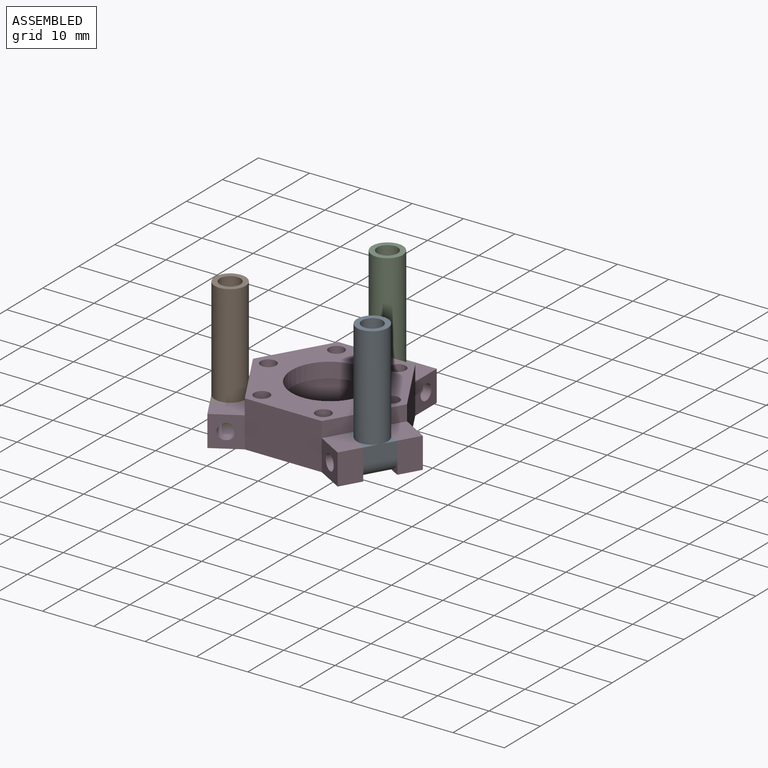
[diagram: assembled view]
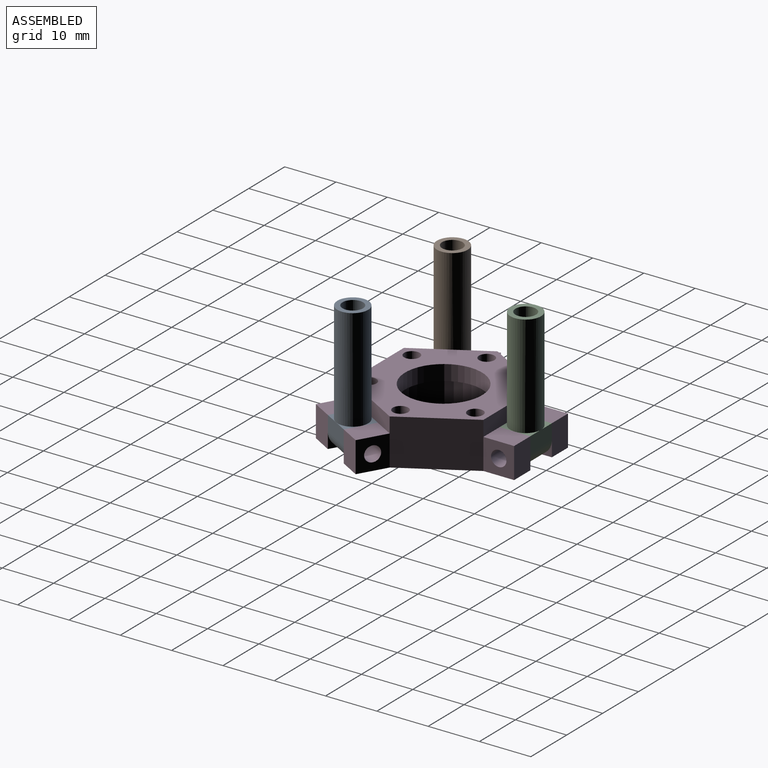
[diagram: assembled view, second angle]
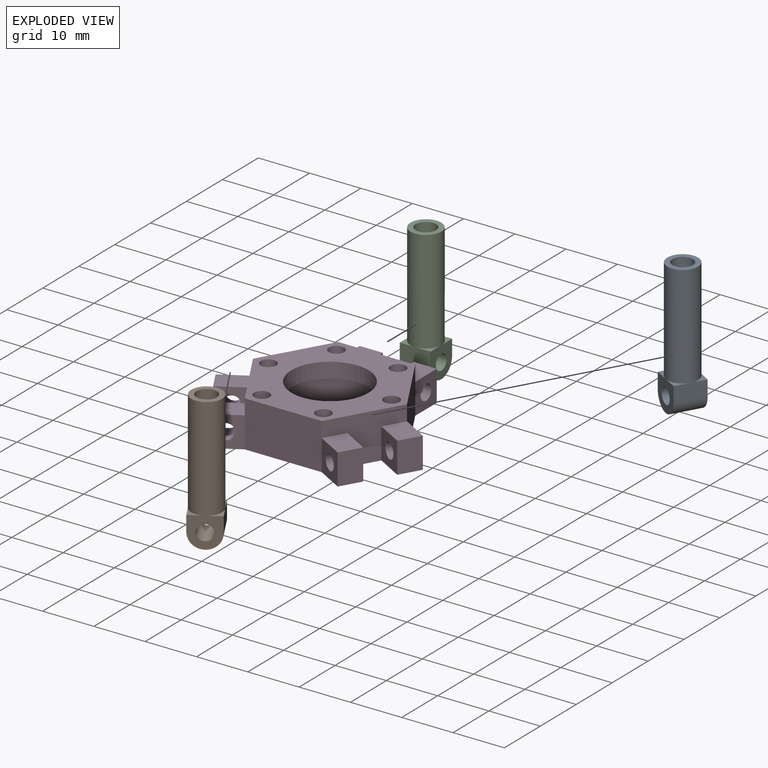
[diagram: exploded view]
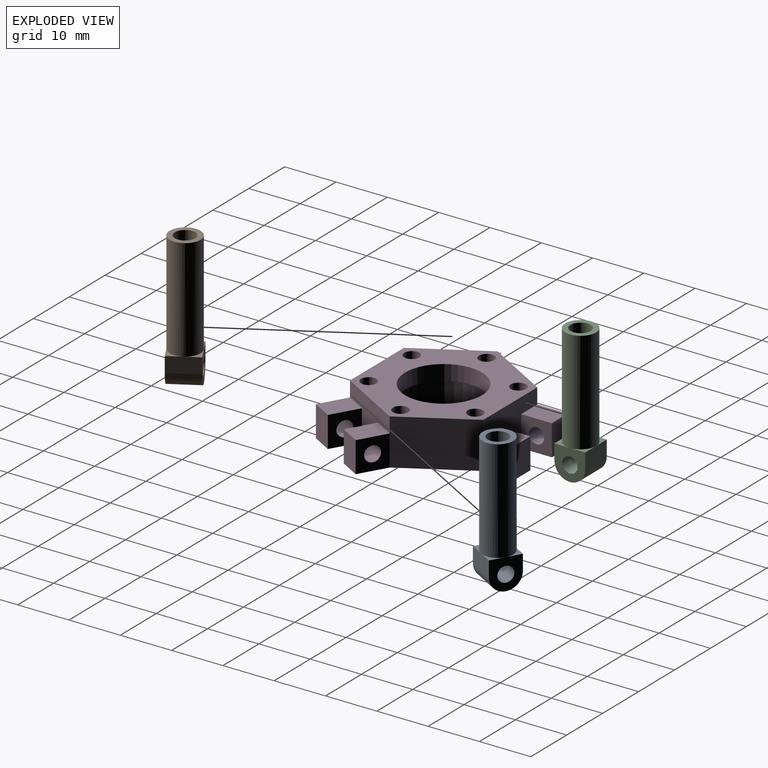
[diagram: exploded view, second angle]
ASSEMBLY  parts=4 mates=3
PART A: 14 faces, bbox 6x6x26 mm
  f0: plane 3x3mm, normal (0,0,1), area 1.9mm2, adj f5,f8,f11
  f1: plane 3x3mm, normal (0,0,1), area 1.9mm2, adj f5,f9,f11
  f2: plane 3x3mm, normal (0,0,1), area 1.9mm2, adj f3,f9,f11
  f3: plane 6x3mm, normal (0,-1,0), area 18mm2, adj f2,f4,f6,f8,f9
  f4: cylinder r=3mm len=6mm, axis (-1,0,0), area 56.5mm2, adj f3,f5,f8,f9
  f5: plane 6x3mm, normal (0,1,0), area 18mm2, adj f0,f1,f4,f8,f9
  f6: plane 3x3mm, normal (0,0,1), area 1.9mm2, adj f3,f8,f11
  f7: cylinder r=1.5mm len=6mm, axis (-1,0,0), area 56.5mm2, adj f8,f9
  f8: plane 6x6mm, normal (1,0,0), area 25.1mm2, adj f0,f3,f4,f5,f6,f7
  f9: plane 6x6mm, normal (-1,0,0), area 25.1mm2, adj f1,f2,f3,f4,f5,f7
  f10: cylinder r=2mm len=20mm, axis (0,0,-1), area 251.3mm2, adj f12,f13
  f11: cylinder r=3mm len=20mm, axis (0,0,-1), area 377mm2, adj f0,f1,f2,f6,f12
  f12: plane 6x6mm, normal (0,0,1), area 15.7mm2, adj f10,f11
  f13: plane 4x4mm, normal (0,0,1), area 12.6mm2, adj f10
PART B: same geometry as A
PART C: same geometry as A
PART D: 53 faces, bbox 40.4x35x9 mm
  f0: cylinder r=1.5mm len=6mm, axis (0,0,1), area 56.5mm2, adj f1,f49
  f1: plane 3x3mm, normal (0,0,1), area 7.1mm2, adj f0
  f2: cylinder r=1.5mm len=6mm, axis (0,0,1), area 56.5mm2, adj f3,f49
  f3: plane 3x3mm, normal (0,0,1), area 7.1mm2, adj f2
  f4: cylinder r=1.5mm len=6mm, axis (0,0,1), area 56.5mm2, adj f5,f49
  f5: plane 3x3mm, normal (0,0,1), area 7.1mm2, adj f4
  f6: cylinder r=1.5mm len=6mm, axis (0,0,1), area 56.5mm2, adj f7,f49
  f7: plane 3x3mm, normal (0,0,1), area 7.1mm2, adj f6
  f8: cylinder r=1.5mm len=6mm, axis (0,0,1), area 56.5mm2, adj f9,f49
  f9: plane 3x3mm, normal (0,0,1), area 7.1mm2, adj f8
  f10: plane 6x4.51mm, normal (0,0,1), area 27mm2, adj f20,f21,f22,f23
  f11: plane 6x4.51mm, normal (0,0,1), area 27mm2, adj f20,f41,f42,f44
  f12: plane 7.45x6.9mm, normal (0,0,1), area 27mm2, adj f36,f37,f38,f39
  f13: plane 7.45x6.9mm, normal (0,0,1), area 27mm2, adj f33,f34,f35,f36
  f14: plane 7.45x6.9mm, normal (0,0,1), area 27mm2, adj f28,f29,f30,f31
  f15: plane 7.45x6.9mm, normal (0,0,1), area 27mm2, adj f25,f26,f27,f28
  f16: cylinder r=1.5mm len=5.4mm, axis (0.5,0.87,0), area 42.5mm2, adj f33,f35
  f17: cylinder r=1.5mm len=5.4mm, axis (0.5,0.87,0), area 42.5mm2, adj f37,f39
  f18: cylinder r=1.5mm len=5.4mm, axis (0.5,-0.87,0), area 42.5mm2, adj f25,f27
  f19: cylinder r=1.5mm len=5.4mm, axis (0.5,-0.87,0), area 42.5mm2, adj f29,f31
  f20: plane 15.01x9mm, normal (0,1,0), area 81mm2, adj f10,f11,f21,f24,f40,f44,f45,f49
  f21: plane 6x6mm, normal (1,0,0), area 28.9mm2, adj f10,f20,f22,f45,f47
  f22: plane 6x4.51mm, normal (0,1,0), area 27mm2, adj f10,f21,f23,f45
  f23: plane 6x6mm, normal (-1,0,0), area 28.9mm2, adj f10,f22,f24,f45,f47
  f24: plane 13x9mm, normal (-0.87,0.5,0), area 135.1mm2, adj f20,f23,f25,f28,f45,f49
  f25: plane 6x5.2mm, normal (-0.5,0.87,0), area 28.9mm2, adj f15,f18,f24,f26,f45
  f26: plane 6x3.9mm, normal (-0.87,-0.5,0), area 27mm2, adj f15,f25,f27,f45
  f27: plane 6x5.2mm, normal (0.5,-0.87,0), area 28.9mm2, adj f15,f18,f26,f28,f45
  f28: plane 13x9mm, normal (-0.87,-0.5,0), area 81mm2, adj f14,f15,f24,f27,f29,f32,f45,f49
  f29: plane 6x5.2mm, normal (-0.5,0.87,0), area 28.9mm2, adj f14,f19,f28,f30,f45
  f30: plane 6x3.9mm, normal (-0.87,-0.5,0), area 27mm2, adj f14,f29,f31,f45
  f31: plane 6x5.2mm, normal (0.5,-0.87,0), area 28.9mm2, adj f14,f19,f30,f32,f45
  f32: plane 15.01x9mm, normal (0,-1,0), area 135.1mm2, adj f28,f31,f33,f36,f45,f49
  f33: plane 6x5.2mm, normal (-0.5,-0.87,0), area 28.9mm2, adj f13,f16,f32,f34,f45
  f34: plane 6x3.9mm, normal (0.87,-0.5,0), area 27mm2, adj f13,f33,f35,f45
  f35: plane 6x5.2mm, normal (0.5,0.87,0), area 28.9mm2, adj f13,f16,f34,f36,f45
  f36: plane 13x9mm, normal (0.87,-0.5,0), area 81mm2, adj f12,f13,f32,f35,f37,f40,f45,f49
  f37: plane 6x5.2mm, normal (-0.5,-0.87,0), area 28.9mm2, adj f12,f17,f36,f38,f45
  f38: plane 6x3.9mm, normal (0.87,-0.5,0), area 27mm2, adj f12,f37,f39,f45
  f39: plane 6x5.2mm, normal (0.5,0.87,0), area 28.9mm2, adj f12,f17,f38,f40,f45
  f40: plane 13x9mm, normal (0.87,0.5,0), area 135.1mm2, adj f20,f36,f39,f41,f45,f49
  f41: plane 6x6mm, normal (1,0,0), area 28.9mm2, adj f11,f40,f42,f45,f46
  f42: plane 6x4.51mm, normal (0,1,0), area 27mm2, adj f11,f41,f44,f45
  f43: cylinder r=10mm len=20mm, axis (0,0,-1), area 377mm2, adj f45,f50
  f44: plane 6x6mm, normal (-1,0,0), area 28.9mm2, adj f11,f20,f42,f45,f46
  f45: plane 40.41x35mm, normal (0,0,-1), area 433.5mm2, adj f20,f21,f22,f23,f24,f25,f26,f27
  f46: cylinder r=1.5mm len=4.51mm, axis (-1,0,0), area 42.5mm2, adj f41,f44
  f47: cylinder r=1.5mm len=4.51mm, axis (-1,0,0), area 42.5mm2, adj f21,f23
  f48: cylinder r=7.5mm len=15mm, axis (0,0,-1), area 141.4mm2, adj f49,f50
  f49: plane 30.02x26mm, normal (0,0,1), area 366.3mm2, adj f0,f2,f4,f6,f8,f20,f24,f28
  f50: plane 20x20mm, normal (0,0,-1), area 137.4mm2, adj f43,f48
  f51: cylinder r=1.5mm len=6mm, axis (0,0,1), area 56.5mm2, adj f49,f52
  f52: plane 3x3mm, normal (0,0,1), area 7.1mm2, adj f51
PLACE A rot(axis=(0,0,1),60deg) t=(13.86,-8,3)mm
PLACE B rot(axis=(0,0,-1),60deg) t=(-13.86,-8,3)mm
PLACE C t=(0,16,3)mm
PLACE D at identity fixed
MATE revolute C.f4 <-> D.f46  axis (-1,0,0) through (-3,16,3)mm
MATE revolute A.f7 <-> D.f16  axis (0.5,0.87,0) through (15.36,-5.4,3)mm
MATE revolute B.f4 <-> D.f18  axis (0.5,-0.87,0) through (-12.36,-10.6,3)mm
